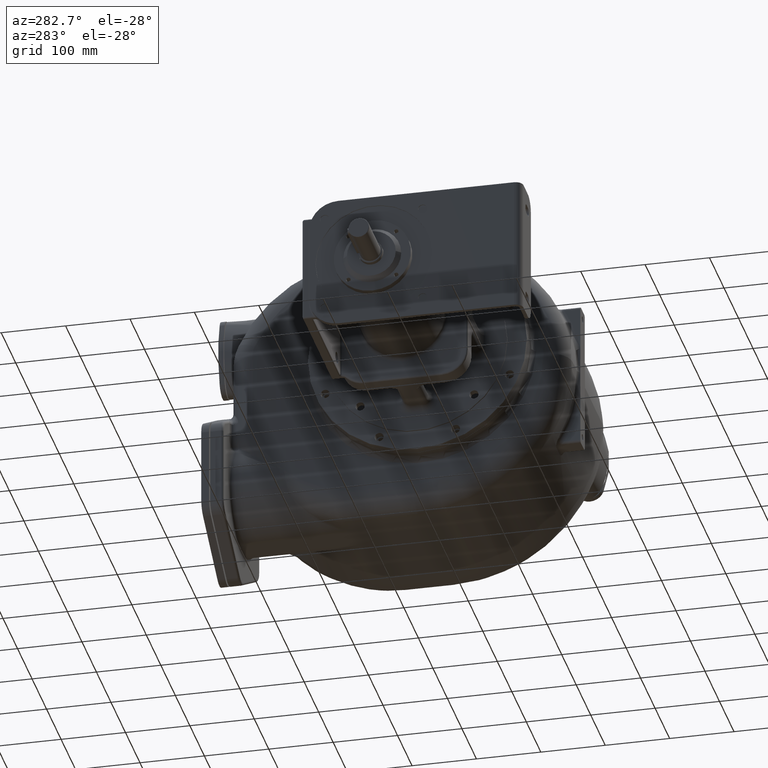
[diagram: clean part render]
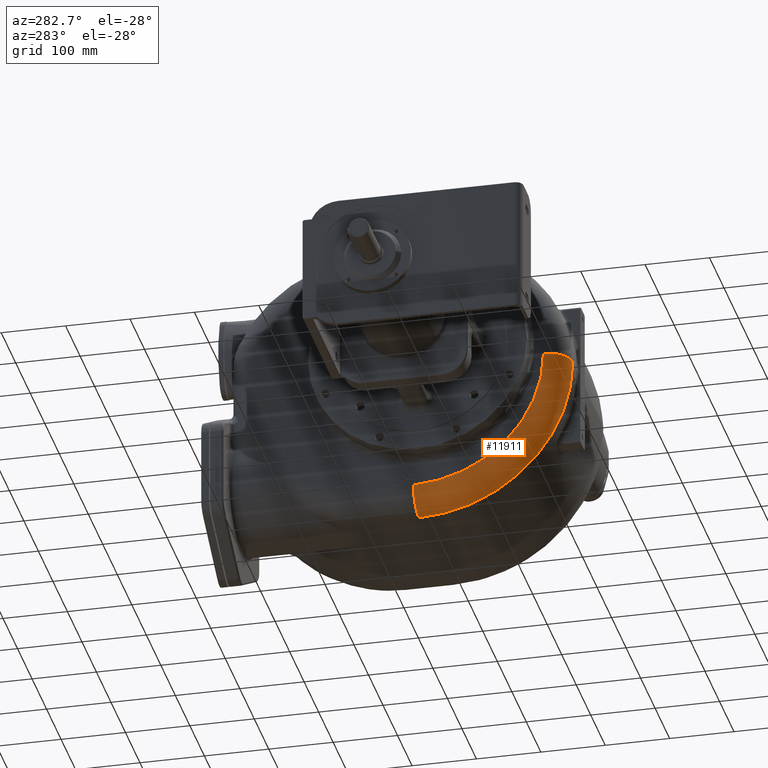
[diagram: same view with one face highlighted and labeled with its STEP entity id]
A machine part, auxiliary view. The second image highlights one B-rep face of the part: STEP entity #11911.
In plain terms, the highlighted toroidal blend (fillet) surface has major radius 202 mm and minor (blend) radius 37 mm.
Its self-contained STEP definition (entity closure, byte-faithful):
#2048=CARTESIAN_POINT('',(-8.7E1,2.43E2,-1.3E1));
#2049=DIRECTION('',(-1.E0,0.E0,0.E0));
#2050=DIRECTION('',(0.E0,0.E0,-1.E0));
#2051=AXIS2_PLACEMENT_3D('',#2048,#2049,#2050);
#3471=CARTESIAN_POINT('',(-5.E1,2.43E2,-2.15E2));
#3472=DIRECTION('',(0.E0,-1.E0,0.E0));
#3473=DIRECTION('',(-1.E0,0.E0,0.E0));
#3474=AXIS2_PLACEMENT_3D('',#3471,#3472,#3473);
#3531=CARTESIAN_POINT('',(-5.E1,4.1E1,-1.3E1));
#3532=DIRECTION('',(0.E0,0.E0,1.E0));
#3533=DIRECTION('',(-1.E0,0.E0,0.E0));
#3534=AXIS2_PLACEMENT_3D('',#3531,#3532,#3533);
#5976=CARTESIAN_POINT('',(-5.E1,2.43E2,-1.3E1));
#5977=DIRECTION('',(-1.E0,0.E0,0.E0));
#5978=DIRECTION('',(0.E0,0.E0,-1.E0));
#5979=AXIS2_PLACEMENT_3D('',#5976,#5977,#5978);
#7715=CARTESIAN_POINT('',(-5.E1,2.43E2,-2.52E2));
#7717=VERTEX_POINT('',#7715);
#7796=CARTESIAN_POINT('',(-8.7E1,2.43E2,-2.15E2));
#7798=VERTEX_POINT('',#7796);
#7801=CARTESIAN_POINT('',(-8.7E1,4.1E1,-1.3E1));
#7802=VERTEX_POINT('',#7801);
#7803=CARTESIAN_POINT('',(-5.E1,4.E0,-1.3E1));
#7804=VERTEX_POINT('',#7803);
#11898=CARTESIAN_POINT('',(-5.E1,2.43E2,-1.3E1));
#11899=DIRECTION('',(-1.E0,0.E0,0.E0));
#11900=DIRECTION('',(0.E0,4.993997218296E-3,-9.999875299181E-1));
#11901=AXIS2_PLACEMENT_3D('',#11898,#11899,#11900);
#11902=TOROIDAL_SURFACE('',#11901,2.02E2,3.7E1);
#11903=ORIENTED_EDGE('',*,*,#10874,.T.);
#11905=ORIENTED_EDGE('',*,*,#11904,.T.);
#11907=ORIENTED_EDGE('',*,*,#11906,.F.);
#11908=ORIENTED_EDGE('',*,*,#11891,.F.);
#11909=EDGE_LOOP('',(#11903,#11905,#11907,#11908));
#11910=FACE_OUTER_BOUND('',#11909,.F.);
#11911=ADVANCED_FACE('',(#11910),#11902,.T.);
#2052=CIRCLE('',#2051,2.02E2);
#3475=CIRCLE('',#3474,3.7E1);
#3535=CIRCLE('',#3534,3.7E1);
#5980=CIRCLE('',#5979,2.39E2);
#10874=EDGE_CURVE('',#7798,#7802,#2052,.T.);
#11891=EDGE_CURVE('',#7798,#7717,#3475,.T.);
#11904=EDGE_CURVE('',#7802,#7804,#3535,.T.);
#11906=EDGE_CURVE('',#7717,#7804,#5980,.T.);